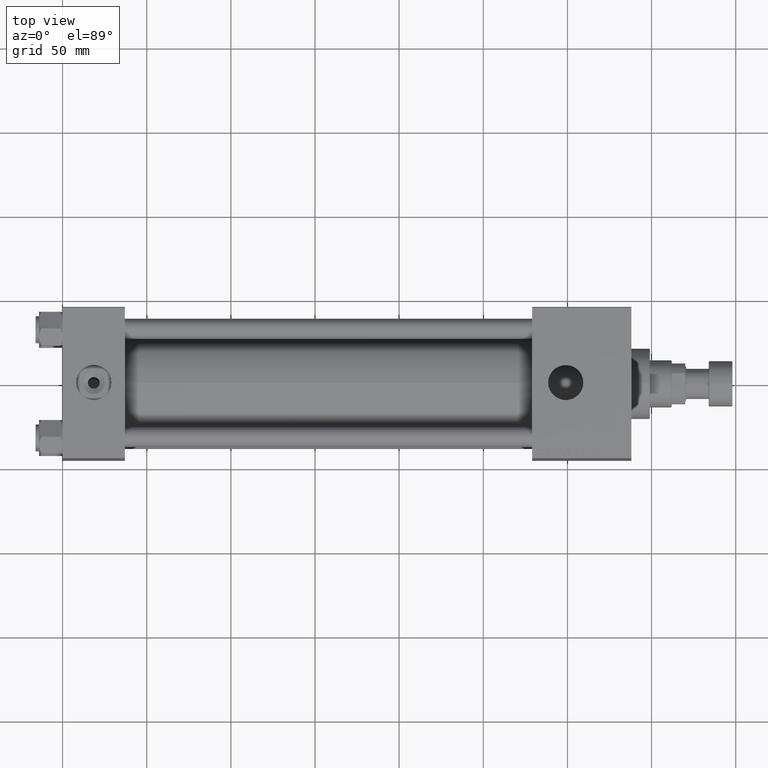
[diagram: clean part render]
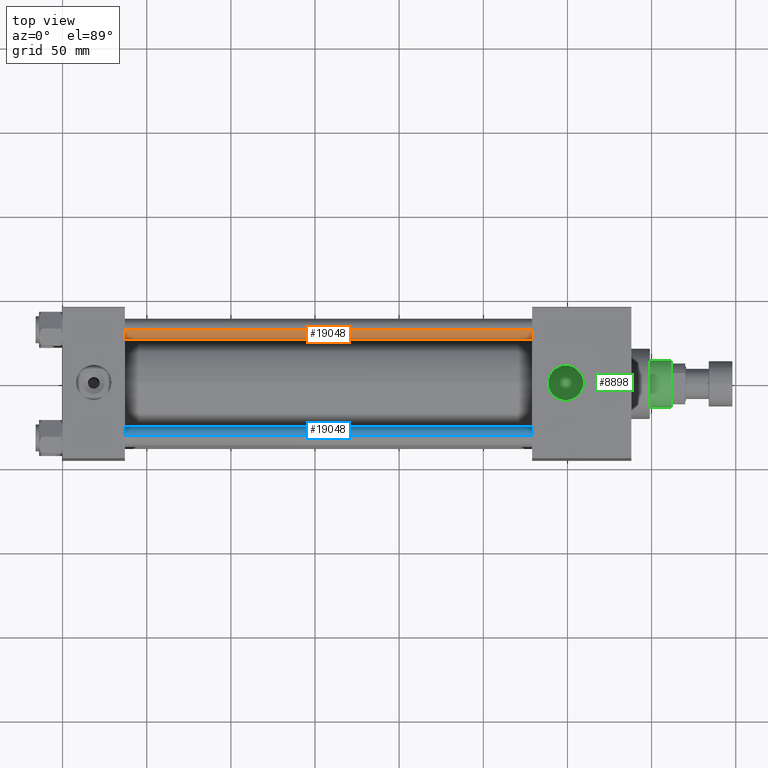
[diagram: same view with three faces highlighted in distinct colors, each labeled with its STEP entity id]
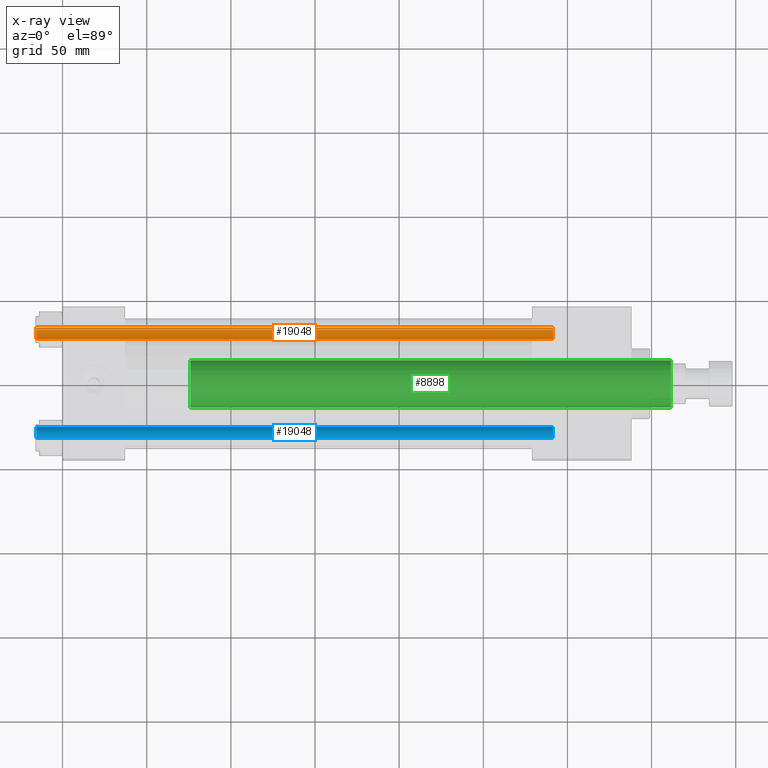
[diagram: x-ray of the same camera — body ghosted, the three highlighted faces saturated]
A machine part, top view with three faces highlighted in distinct colors.
The next image is the same camera in x-ray (body ghosted, the three faces saturated) — at least one of them is partly hidden behind the body in this view.
Their STEP definitions:

[orange] entity #19048 — the highlighted cylindrical surface (edge-blend (fillet) strip) has radius 6 mm, axis along (-1, 0, 0).
#1504 = CYLINDRICAL_SURFACE ( 'NONE', #26784, 6.000000000000000888 ) ;
#3782 = ORIENTED_EDGE ( 'NONE', *, *, #51819, .T. ) ;
#3868 = VECTOR ( 'NONE', #44496, 1000.000000000000000 ) ;
#4203 = CARTESIAN_POINT ( 'NONE',  ( 6.000000000000000888, 7.347880794884120722E-16, 307.4999999999999432 ) ) ;
#7028 = AXIS2_PLACEMENT_3D ( 'NONE', #31272, #14443, #26742 ) ;
#8227 = CARTESIAN_POINT ( 'NONE',  ( 6.000000000000000888, 7.347880794884120722E-16, 308.0000000000000000 ) ) ;
#9786 = CARTESIAN_POINT ( 'NONE',  ( 0.000000000000000000, 0.000000000000000000, 308.0000000000000000 ) ) ;
#10035 = DIRECTION ( 'NONE',  ( -0.000000000000000000, -0.000000000000000000, -1.000000000000000000 ) ) ;
#13305 = CARTESIAN_POINT ( 'NONE',  ( -6.000000000000000888, 0.000000000000000000, 307.4999999999999432 ) ) ;
#14443 = DIRECTION ( 'NONE',  ( -0.000000000000000000, -0.000000000000000000, 1.000000000000000000 ) ) ;
#19048 = ADVANCED_FACE ( 'NONE', ( #22611 ), #1504, .T. ) ;
#19233 = DIRECTION ( 'NONE',  ( 1.000000000000000000, 0.000000000000000000, 0.000000000000000000 ) ) ;
#19973 = CARTESIAN_POINT ( 'NONE',  ( -6.000000000000000888, 0.000000000000000000, 308.0000000000000000 ) ) ;
#20227 = LINE ( 'NONE', #19973, #3868 ) ;
#22042 = EDGE_CURVE ( 'NONE', #28727, #42847, #20227, .T. ) ;
#22090 = DIRECTION ( 'NONE',  ( -0.000000000000000000, -0.000000000000000000, -1.000000000000000000 ) ) ;
#22611 = FACE_OUTER_BOUND ( 'NONE', #46758, .T. ) ;
#23231 = CARTESIAN_POINT ( 'NONE',  ( 0.000000000000000000, 0.000000000000000000, 307.4999999999999432 ) ) ;
#26086 = DIRECTION ( 'NONE',  ( -1.000000000000000000, 0.000000000000000000, 0.000000000000000000 ) ) ;
#26204 = EDGE_CURVE ( 'NONE', #34493, #43757, #32534, .T. ) ;
#26742 = DIRECTION ( 'NONE',  ( 1.000000000000000000, 0.000000000000000000, 0.000000000000000000 ) ) ;
#26784 = AXIS2_PLACEMENT_3D ( 'NONE', #9786, #10035, #26086 ) ;
#28727 = VERTEX_POINT ( 'NONE', #13305 ) ;
#29830 = ORIENTED_EDGE ( 'NONE', *, *, #22042, .T. ) ;
#30044 = CIRCLE ( 'NONE', #7028, 6.000000000000000888 ) ;
#31272 = CARTESIAN_POINT ( 'NONE',  ( 0.000000000000000000, 0.000000000000000000, 0.5000000000000559552 ) ) ;
#31654 = ORIENTED_EDGE ( 'NONE', *, *, #39407, .T. ) ;
#32534 = LINE ( 'NONE', #8227, #34765 ) ;
#34493 = VERTEX_POINT ( 'NONE', #4203 ) ;
#34765 = VECTOR ( 'NONE', #22090, 1000.000000000000000 ) ;
#39407 = EDGE_CURVE ( 'NONE', #42847, #43757, #30044, .T. ) ;
#39502 = DIRECTION ( 'NONE',  ( 0.000000000000000000, 0.000000000000000000, -1.000000000000000000 ) ) ;
#39704 = CARTESIAN_POINT ( 'NONE',  ( 6.000000000000000888, 7.347880794884120722E-16, 0.5000000000000559552 ) ) ;
#41291 = ORIENTED_EDGE ( 'NONE', *, *, #26204, .F. ) ;
#42847 = VERTEX_POINT ( 'NONE', #50938 ) ;
#43757 = VERTEX_POINT ( 'NONE', #39704 ) ;
#44301 = AXIS2_PLACEMENT_3D ( 'NONE', #23231, #39502, #19233 ) ;
#44496 = DIRECTION ( 'NONE',  ( -0.000000000000000000, -0.000000000000000000, -1.000000000000000000 ) ) ;
#46758 = EDGE_LOOP ( 'NONE', ( #41291, #3782, #29830, #31654 ) ) ;
#48550 = CIRCLE ( 'NONE', #44301, 6.000000000000000888 ) ;
#50938 = CARTESIAN_POINT ( 'NONE',  ( -6.000000000000000888, 0.000000000000000000, 0.5000000000000559552 ) ) ;
#51819 = EDGE_CURVE ( 'NONE', #34493, #28727, #48550, .T. ) ;

[blue] entity #19048 — the highlighted cylindrical surface (edge-blend (fillet) strip) has radius 6 mm, axis along (1, 0, -0).
#1504 = CYLINDRICAL_SURFACE ( 'NONE', #26784, 6.000000000000000888 ) ;
#3782 = ORIENTED_EDGE ( 'NONE', *, *, #51819, .T. ) ;
#3868 = VECTOR ( 'NONE', #44496, 1000.000000000000000 ) ;
#4203 = CARTESIAN_POINT ( 'NONE',  ( 6.000000000000000888, 7.347880794884120722E-16, 307.4999999999999432 ) ) ;
#7028 = AXIS2_PLACEMENT_3D ( 'NONE', #31272, #14443, #26742 ) ;
#8227 = CARTESIAN_POINT ( 'NONE',  ( 6.000000000000000888, 7.347880794884120722E-16, 308.0000000000000000 ) ) ;
#9786 = CARTESIAN_POINT ( 'NONE',  ( 0.000000000000000000, 0.000000000000000000, 308.0000000000000000 ) ) ;
#10035 = DIRECTION ( 'NONE',  ( -0.000000000000000000, -0.000000000000000000, -1.000000000000000000 ) ) ;
#13305 = CARTESIAN_POINT ( 'NONE',  ( -6.000000000000000888, 0.000000000000000000, 307.4999999999999432 ) ) ;
#14443 = DIRECTION ( 'NONE',  ( -0.000000000000000000, -0.000000000000000000, 1.000000000000000000 ) ) ;
#19048 = ADVANCED_FACE ( 'NONE', ( #22611 ), #1504, .T. ) ;
#19233 = DIRECTION ( 'NONE',  ( 1.000000000000000000, 0.000000000000000000, 0.000000000000000000 ) ) ;
#19973 = CARTESIAN_POINT ( 'NONE',  ( -6.000000000000000888, 0.000000000000000000, 308.0000000000000000 ) ) ;
#20227 = LINE ( 'NONE', #19973, #3868 ) ;
#22042 = EDGE_CURVE ( 'NONE', #28727, #42847, #20227, .T. ) ;
#22090 = DIRECTION ( 'NONE',  ( -0.000000000000000000, -0.000000000000000000, -1.000000000000000000 ) ) ;
#22611 = FACE_OUTER_BOUND ( 'NONE', #46758, .T. ) ;
#23231 = CARTESIAN_POINT ( 'NONE',  ( 0.000000000000000000, 0.000000000000000000, 307.4999999999999432 ) ) ;
#26086 = DIRECTION ( 'NONE',  ( -1.000000000000000000, 0.000000000000000000, 0.000000000000000000 ) ) ;
#26204 = EDGE_CURVE ( 'NONE', #34493, #43757, #32534, .T. ) ;
#26742 = DIRECTION ( 'NONE',  ( 1.000000000000000000, 0.000000000000000000, 0.000000000000000000 ) ) ;
#26784 = AXIS2_PLACEMENT_3D ( 'NONE', #9786, #10035, #26086 ) ;
#28727 = VERTEX_POINT ( 'NONE', #13305 ) ;
#29830 = ORIENTED_EDGE ( 'NONE', *, *, #22042, .T. ) ;
#30044 = CIRCLE ( 'NONE', #7028, 6.000000000000000888 ) ;
#31272 = CARTESIAN_POINT ( 'NONE',  ( 0.000000000000000000, 0.000000000000000000, 0.5000000000000559552 ) ) ;
#31654 = ORIENTED_EDGE ( 'NONE', *, *, #39407, .T. ) ;
#32534 = LINE ( 'NONE', #8227, #34765 ) ;
#34493 = VERTEX_POINT ( 'NONE', #4203 ) ;
#34765 = VECTOR ( 'NONE', #22090, 1000.000000000000000 ) ;
#39407 = EDGE_CURVE ( 'NONE', #42847, #43757, #30044, .T. ) ;
#39502 = DIRECTION ( 'NONE',  ( 0.000000000000000000, 0.000000000000000000, -1.000000000000000000 ) ) ;
#39704 = CARTESIAN_POINT ( 'NONE',  ( 6.000000000000000888, 7.347880794884120722E-16, 0.5000000000000559552 ) ) ;
#41291 = ORIENTED_EDGE ( 'NONE', *, *, #26204, .F. ) ;
#42847 = VERTEX_POINT ( 'NONE', #50938 ) ;
#43757 = VERTEX_POINT ( 'NONE', #39704 ) ;
#44301 = AXIS2_PLACEMENT_3D ( 'NONE', #23231, #39502, #19233 ) ;
#44496 = DIRECTION ( 'NONE',  ( -0.000000000000000000, -0.000000000000000000, -1.000000000000000000 ) ) ;
#46758 = EDGE_LOOP ( 'NONE', ( #41291, #3782, #29830, #31654 ) ) ;
#48550 = CIRCLE ( 'NONE', #44301, 6.000000000000000888 ) ;
#50938 = CARTESIAN_POINT ( 'NONE',  ( -6.000000000000000888, 0.000000000000000000, 0.5000000000000559552 ) ) ;
#51819 = EDGE_CURVE ( 'NONE', #34493, #28727, #48550, .T. ) ;

[green] entity #8898 — the highlighted cylindrical surface (edge-blend (fillet) strip) has radius 14 mm, axis along (-1, 0, 0).
#1990 = FACE_OUTER_BOUND ( 'NONE', #31137, .T. ) ;
#3829 = VERTEX_POINT ( 'NONE', #30289 ) ;
#5645 = VERTEX_POINT ( 'NONE', #31161 ) ;
#6377 = EDGE_CURVE ( 'NONE', #3829, #44563, #48546, .T. ) ;
#8898 = ADVANCED_FACE ( 'NONE', ( #1990 ), #22552, .T. ) ;
#8964 = EDGE_CURVE ( 'NONE', #3829, #37471, #46004, .T. ) ;
#9454 = CARTESIAN_POINT ( 'NONE',  ( 14.00000000000000178, 1.714505518806294835E-15, 324.9999999999999432 ) ) ;
#11745 = ORIENTED_EDGE ( 'NONE', *, *, #19167, .T. ) ;
#12909 = LINE ( 'NONE', #17715, #38703 ) ;
#13445 = CARTESIAN_POINT ( 'NONE',  ( 0.000000000000000000, 0.000000000000000000, 324.9999999999999432 ) ) ;
#14417 = AXIS2_PLACEMENT_3D ( 'NONE', #13445, #51044, #38818 ) ;
#17059 = ORIENTED_EDGE ( 'NONE', *, *, #6377, .T. ) ;
#17715 = CARTESIAN_POINT ( 'NONE',  ( -14.00000000000000178, 0.000000000000000000, 324.9999999999999432 ) ) ;
#19167 = EDGE_CURVE ( 'NONE', #44563, #5645, #12909, .T. ) ;
#22027 = DIRECTION ( 'NONE',  ( 0.000000000000000000, 0.000000000000000000, 1.000000000000000000 ) ) ;
#22552 = CYLINDRICAL_SURFACE ( 'NONE', #14417, 14.00000000000000178 ) ;
#23351 = CARTESIAN_POINT ( 'NONE',  ( -14.00000000000000178, 0.000000000000000000, 324.4999999999999432 ) ) ;
#25441 = CIRCLE ( 'NONE', #26281, 14.00000000000000178 ) ;
#25569 = AXIS2_PLACEMENT_3D ( 'NONE', #34108, #50353, #43151 ) ;
#26281 = AXIS2_PLACEMENT_3D ( 'NONE', #41764, #22027, #37776 ) ;
#26633 = EDGE_CURVE ( 'NONE', #5645, #37471, #25441, .T. ) ;
#28177 = CARTESIAN_POINT ( 'NONE',  ( 14.00000000000000178, 1.714505518806294835E-15, 39.00000000000000000 ) ) ;
#28912 = ORIENTED_EDGE ( 'NONE', *, *, #8964, .F. ) ;
#30289 = CARTESIAN_POINT ( 'NONE',  ( 14.00000000000000178, 1.714505518806294835E-15, 324.4999999999999432 ) ) ;
#31137 = EDGE_LOOP ( 'NONE', ( #28912, #17059, #11745, #36373 ) ) ;
#31161 = CARTESIAN_POINT ( 'NONE',  ( -14.00000000000000178, 0.000000000000000000, 39.00000000000000000 ) ) ;
#33993 = DIRECTION ( 'NONE',  ( -0.000000000000000000, -0.000000000000000000, -1.000000000000000000 ) ) ;
#34108 = CARTESIAN_POINT ( 'NONE',  ( 0.000000000000000000, 0.000000000000000000, 324.4999999999999432 ) ) ;
#36373 = ORIENTED_EDGE ( 'NONE', *, *, #26633, .T. ) ;
#37471 = VERTEX_POINT ( 'NONE', #28177 ) ;
#37776 = DIRECTION ( 'NONE',  ( 1.000000000000000000, 0.000000000000000000, 0.000000000000000000 ) ) ;
#38326 = VECTOR ( 'NONE', #50259, 1000.000000000000000 ) ;
#38703 = VECTOR ( 'NONE', #33993, 1000.000000000000000 ) ;
#38818 = DIRECTION ( 'NONE',  ( -1.000000000000000000, 0.000000000000000000, 0.000000000000000000 ) ) ;
#41764 = CARTESIAN_POINT ( 'NONE',  ( 0.000000000000000000, 0.000000000000000000, 39.00000000000000000 ) ) ;
#43151 = DIRECTION ( 'NONE',  ( 1.000000000000000000, 0.000000000000000000, 0.000000000000000000 ) ) ;
#44563 = VERTEX_POINT ( 'NONE', #23351 ) ;
#46004 = LINE ( 'NONE', #9454, #38326 ) ;
#48546 = CIRCLE ( 'NONE', #25569, 14.00000000000000178 ) ;
#50259 = DIRECTION ( 'NONE',  ( -0.000000000000000000, -0.000000000000000000, -1.000000000000000000 ) ) ;
#50353 = DIRECTION ( 'NONE',  ( 0.000000000000000000, 0.000000000000000000, -1.000000000000000000 ) ) ;
#51044 = DIRECTION ( 'NONE',  ( -0.000000000000000000, -0.000000000000000000, -1.000000000000000000 ) ) ;